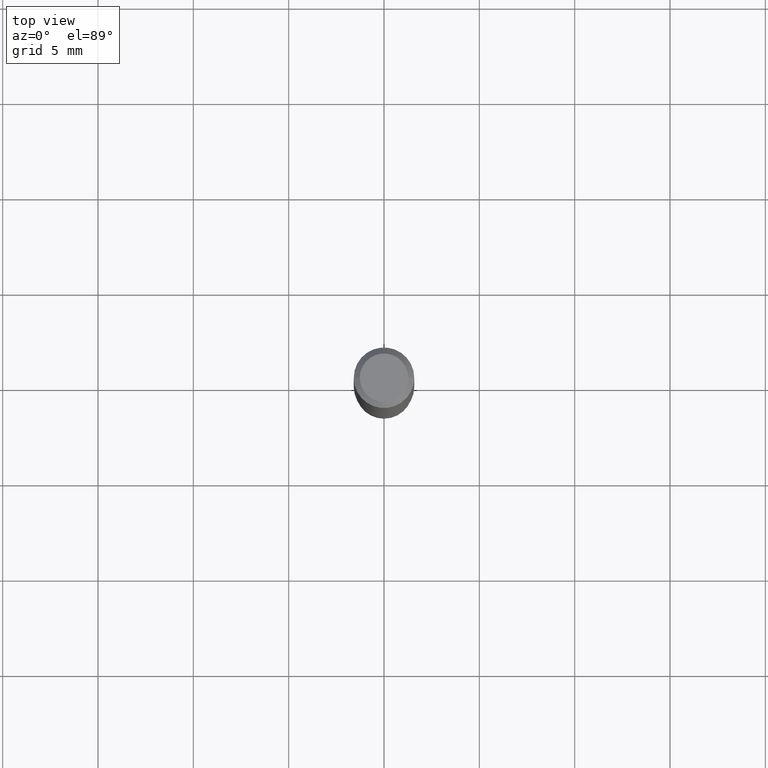
[diagram: clean part render]
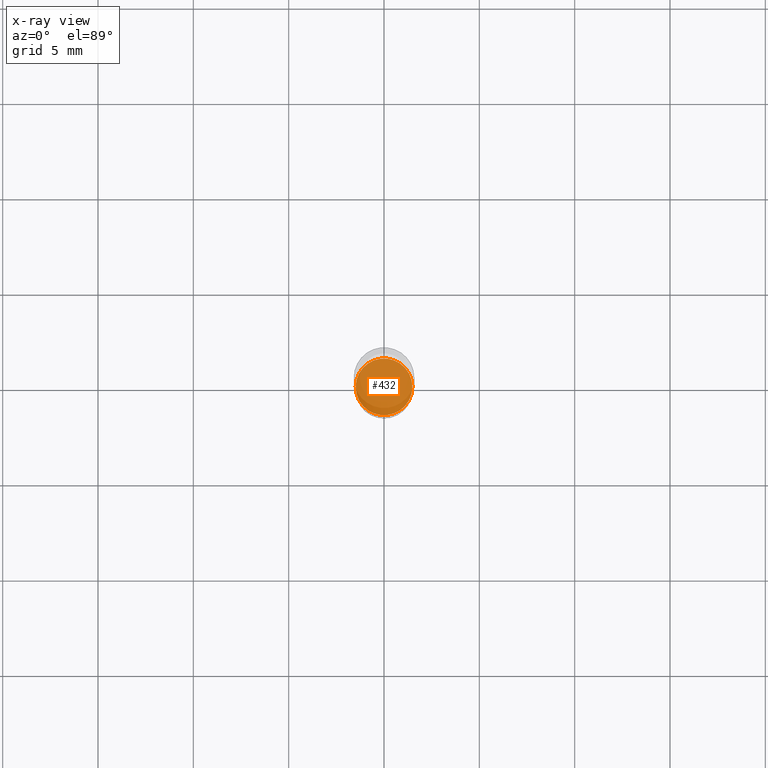
[diagram: x-ray — body ghosted, one internal face saturated and labeled with its STEP entity id]
A machine part, top view, then the same camera in x-ray: the body is ghosted and one INTERNAL B-rep face — a face not visible from any outside direction — is saturated and labeled: STEP entity #432.
In plain terms, the highlighted planar face has unit normal (-0, 0, 1).
Its self-contained STEP definition (entity closure, byte-faithful):
#28 = DIRECTION ( 'NONE',  ( -2.438088387897960049E-29, 3.491481338843145188E-15, 1.000000000000000000 ) ) ;
#31 = CARTESIAN_POINT ( 'NONE',  ( -0.05854999999999999788, -3.421957473765810306E-15, -1.100000000000000089 ) ) ;
#56 = DIRECTION ( 'NONE',  ( 1.000000000000000000, -6.982962677686264344E-15, 0.000000000000000000 ) ) ;
#109 = ORIENTED_EDGE ( 'NONE', *, *, #388, .F. ) ;
#116 = CARTESIAN_POINT ( 'NONE',  ( 0.05854999999999999788, -4.249481937505991226E-15, -1.100000000000000089 ) ) ;
#146 = AXIS2_PLACEMENT_3D ( 'NONE', #356, #199, #56 ) ;
#155 = DIRECTION ( 'NONE',  ( -2.445468806185136597E-29, 3.491481338843145583E-15, 1.000000000000000000 ) ) ;
#175 = EDGE_LOOP ( 'NONE', ( #109, #357 ) ) ;
#199 = DIRECTION ( 'NONE',  ( -2.445468806185136597E-29, 3.491481338843145583E-15, 1.000000000000000000 ) ) ;
#207 = PLANE ( 'NONE',  #341 ) ;
#212 = FACE_OUTER_BOUND ( 'NONE', #175, .T. ) ;
#213 = EDGE_CURVE ( 'NONE', #324, #217, #347, .T. ) ;
#217 = VERTEX_POINT ( 'NONE', #116 ) ;
#222 = CIRCLE ( 'NONE', #146, 0.05854999999999999788 ) ;
#300 = DIRECTION ( 'NONE',  ( 1.000000000000000000, -6.982962677686264344E-15, 0.000000000000000000 ) ) ;
#303 = CARTESIAN_POINT ( 'NONE',  ( 2.690015686803650369E-29, -3.840629472727460101E-15, -1.100000000000000089 ) ) ;
#321 = DIRECTION ( 'NONE',  ( 1.000000000000000000, -6.982962677686265922E-15, 4.876176775795935793E-29 ) ) ;
#324 = VERTEX_POINT ( 'NONE', #31 ) ;
#341 = AXIS2_PLACEMENT_3D ( 'NONE', #361, #28, #321 ) ;
#347 = CIRCLE ( 'NONE', #372, 0.05854999999999999788 ) ;
#356 = CARTESIAN_POINT ( 'NONE',  ( 2.690015686803650369E-29, -3.840629472727460101E-15, -1.100000000000000089 ) ) ;
#357 = ORIENTED_EDGE ( 'NONE', *, *, #213, .F. ) ;
#361 = CARTESIAN_POINT ( 'NONE',  ( 2.690015686803650369E-29, -3.840629472727460101E-15, -1.100000000000000089 ) ) ;
#372 = AXIS2_PLACEMENT_3D ( 'NONE', #303, #155, #300 ) ;
#388 = EDGE_CURVE ( 'NONE', #217, #324, #222, .T. ) ;
#432 = ADVANCED_FACE ( 'NONE', ( #212 ), #207, .F. ) ;